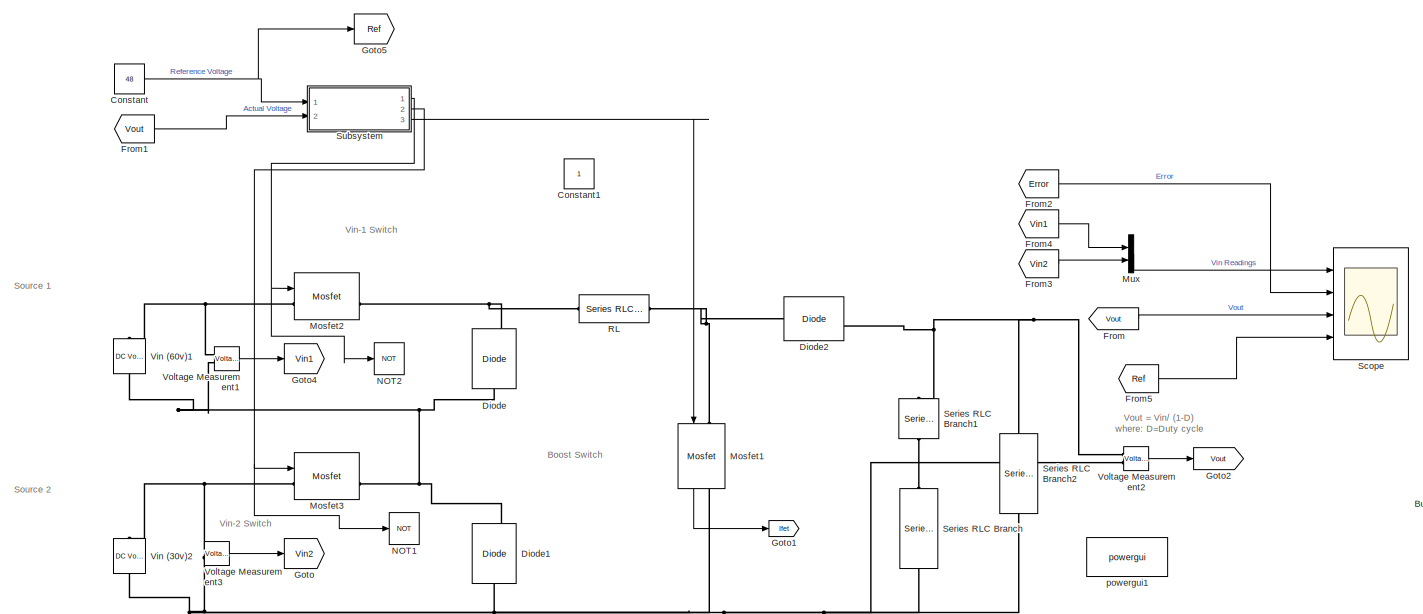
[diagram: root canvas - part 1/2, most of the canvas]
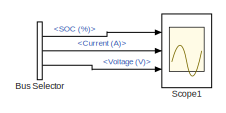
[diagram: root canvas - part 2/2, bottom right region]
MODEL slx_49f4c636add5
KIND model
CONFIG AbsTol = auto
CONFIG EnableMultiTasking = on
CONFIG FixedStep = auto
CONFIG MaxStep = 1e-4
CONFIG MinStep = auto
CONFIG RelTol = 1e-4
CONFIG SampleTimeConstraint = Unconstrained
CONFIG SolverName = VariableStepAuto
CONFIG StartTime = 0.0
CONFIG StopTime = 0.01
BLOCK [BusSelector] Bus Selector
  Commented = on
  OutputSignals = SOC (%),Current (A),Voltage (V)
  Ports = [1, 3]
BLOCK [Constant] Constant
  Value = 48
BLOCK [Constant] Constant1
BLOCK [Reference] Diode  REF=spsDiodeLib/Diode
  NameLocation = right
  Ports = [0, 1, 0, 0, 0, 1, 1]
  SourceBlock = spsDiodeLib/Diode
  SourceProductBaseCode = PS
  SourceType = Diode
BLOCK [Reference] Diode1  REF=spsDiodeLib/Diode
  NameLocation = right
  Ports = [0, 1, 0, 0, 0, 1, 1]
  SourceBlock = spsDiodeLib/Diode
  SourceProductBaseCode = PS
  SourceType = Diode
BLOCK [Reference] Diode2  REF=spsDiodeLib/Diode
  Ports = [0, 1, 0, 0, 0, 1, 1]
  SourceBlock = spsDiodeLib/Diode
  SourceProductBaseCode = PS
  SourceType = Diode
BLOCK [From] From
  GotoTag = Vout
BLOCK [From] From1
  GotoTag = Vout
BLOCK [From] From2
  GotoTag = Error
  TagVisibility = global
BLOCK [From] From3
  GotoTag = Vin2
BLOCK [From] From4
  GotoTag = Vin1
BLOCK [From] From5
  GotoTag = Ref
BLOCK [Goto] Goto
  GotoTag = Vin2
BLOCK [Goto] Goto1
  GotoTag = Ifet
BLOCK [Goto] Goto2
  GotoTag = Vout
BLOCK [Goto] Goto4
  GotoTag = Vin1
BLOCK [Goto] Goto5
  GotoTag = Ref
BLOCK [Reference] Mosfet1  REF=spsMosfetLib/Mosfet
  NameLocation = left
  Ports = [1, 1, 0, 0, 0, 1, 1]
  SourceBlock = spsMosfetLib/Mosfet
  SourceProductBaseCode = PS
  SourceType = Mosfet
BLOCK [Reference] Mosfet2  REF=spsMosfetLib/Mosfet
  Ports = [1, 1, 0, 0, 0, 1, 1]
  SourceBlock = spsMosfetLib/Mosfet
  SourceProductBaseCode = PS
  SourceType = Mosfet
BLOCK [Reference] Mosfet3  REF=spsMosfetLib/Mosfet
  Ports = [1, 1, 0, 0, 0, 1, 1]
  SourceBlock = spsMosfetLib/Mosfet
  SourceProductBaseCode = PS
  SourceType = Mosfet
BLOCK [Mux] Mux
  DisplayOption = bar
  Inputs = 2
  Ports = [2, 1]
BLOCK [Logic] NOT1
  AllPortsSameDT = off
  IconShape = distinctive
  Operator = NOT
  OutDataTypeStr = boolean
  Ports = [1, 1]
BLOCK [Logic] NOT2
  AllPortsSameDT = off
  IconShape = distinctive
  Operator = NOT
  OutDataTypeStr = boolean
  Ports = [1, 1]
BLOCK [Reference] RL  REF=spsSeriesRLCBranchLib/Series RLC Branch
  Ports = [0, 0, 0, 0, 0, 1, 1]
  SourceBlock = spsSeriesRLCBranchLib/Series RLC Branch
  SourceProductBaseCode = PS
  SourceType = Series RLC Branch
BLOCK [Scope] Scope
  Floating = off
  NumInputPorts = 4
  Ports = [4]
  ScopeSpecificationString = Simulink.scopes.TimeScopeBlockCfg('CurrentConfiguration', extmgr.ConfigurationSet(extmgr.Configuration('Core','General UI',true),extmgr.Configuration('Core','Source UI',true),extmgr.Configuration('Sources','WiredSimulink',true,'DataLoggingVariableName','ScopeData1'),extmgr.Configuration('Visuals','Time Domain',true,'SerializedDisplays',{struct('MinYLimReal','-67.86047','MaxYLimReal','115.86047','Y...<+1910ch>
BLOCK [Scope] Scope1
  Commented = on
  Floating = off
  NumInputPorts = 3
  Ports = [3]
  ScopeSpecificationString = Simulink.scopes.TimeScopeBlockCfg('CurrentConfiguration', extmgr.ConfigurationSet(extmgr.Configuration('Core','General UI',true),extmgr.Configuration('Core','Source UI',true),extmgr.Configuration('Sources','WiredSimulink',true,'DataLoggingVariableName','ScopeData1'),extmgr.Configuration('Visuals','Time Domain',true,'SerializedDisplays',{struct('MinYLimReal','54.999976','MaxYLimReal','55.000003','Y...<+2786ch>
BLOCK [Reference] Series RLC Branch  REF=spsSeriesRLCBranchLib/Series RLC Branch
  NameLocation = left
  Ports = [0, 0, 0, 0, 0, 1, 1]
  SourceBlock = spsSeriesRLCBranchLib/Series RLC Branch
  SourceProductBaseCode = PS
  SourceType = Series RLC Branch
BLOCK [Reference] Series RLC Branch1  REF=spsSeriesRLCBranchLib/Series RLC Branch
  NameLocation = left
  Ports = [0, 0, 0, 0, 0, 1, 1]
  SourceBlock = spsSeriesRLCBranchLib/Series RLC Branch
  SourceProductBaseCode = PS
  SourceType = Series RLC Branch
BLOCK [Reference] Series RLC Branch2  REF=spsSeriesRLCBranchLib/Series RLC Branch
  NameLocation = left
  Ports = [0, 0, 0, 0, 0, 1, 1]
  SourceBlock = spsSeriesRLCBranchLib/Series RLC Branch
  SourceProductBaseCode = PS
  SourceType = Series RLC Branch
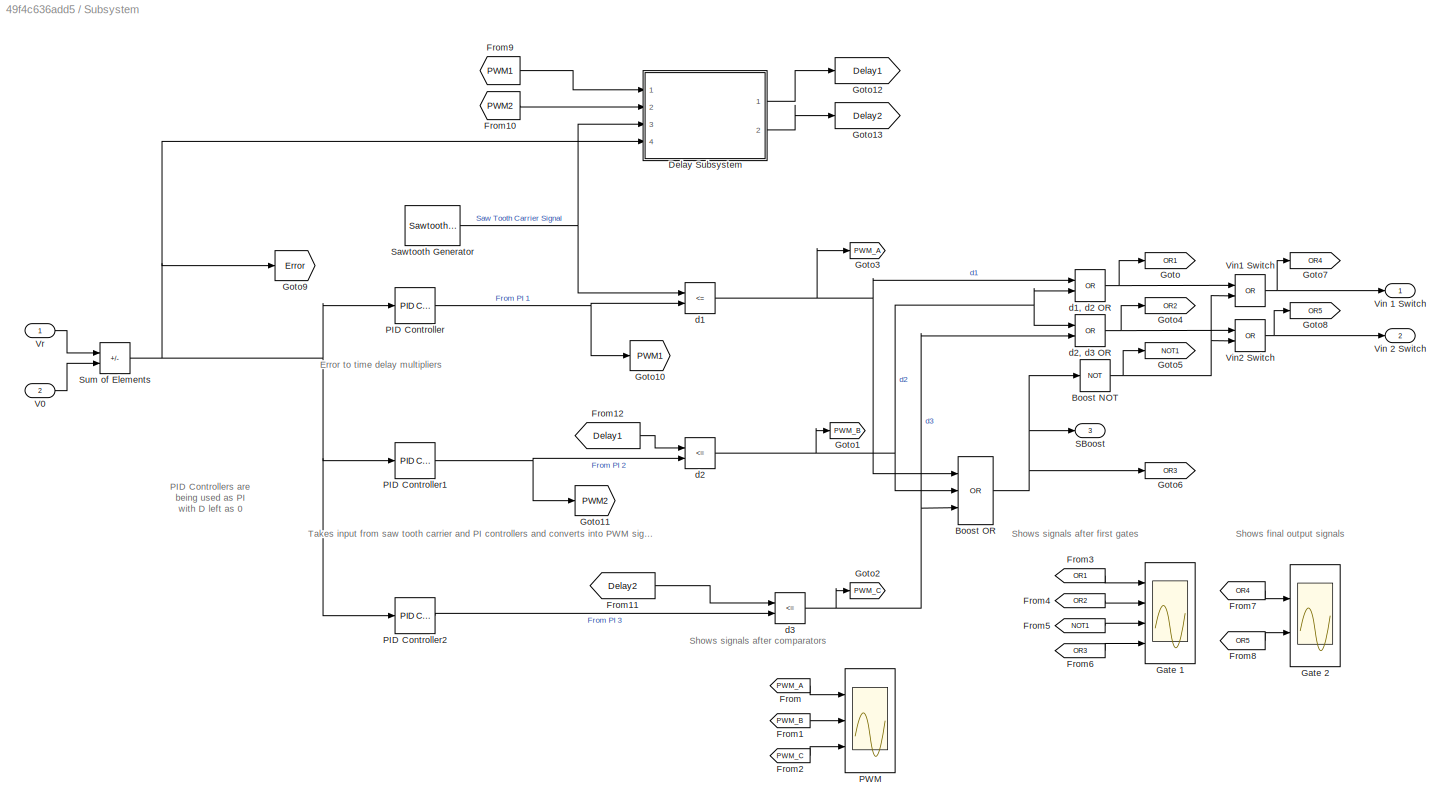
BLOCK [SubSystem] Subsystem
  Ports = [2, 3]
  RequestExecContextInheritance = off
BLOCK [Logic] Subsystem/Boost NOT
  AllPortsSameDT = off
  IconShape = distinctive
  Operator = NOT
  OutDataTypeStr = boolean
  Ports = [1, 1]
BLOCK [Logic] Subsystem/Boost OR
  AllPortsSameDT = off
  IconShape = distinctive
  Inputs = 3
  Operator = OR
  OutDataTypeStr = boolean
  Ports = [3, 1]
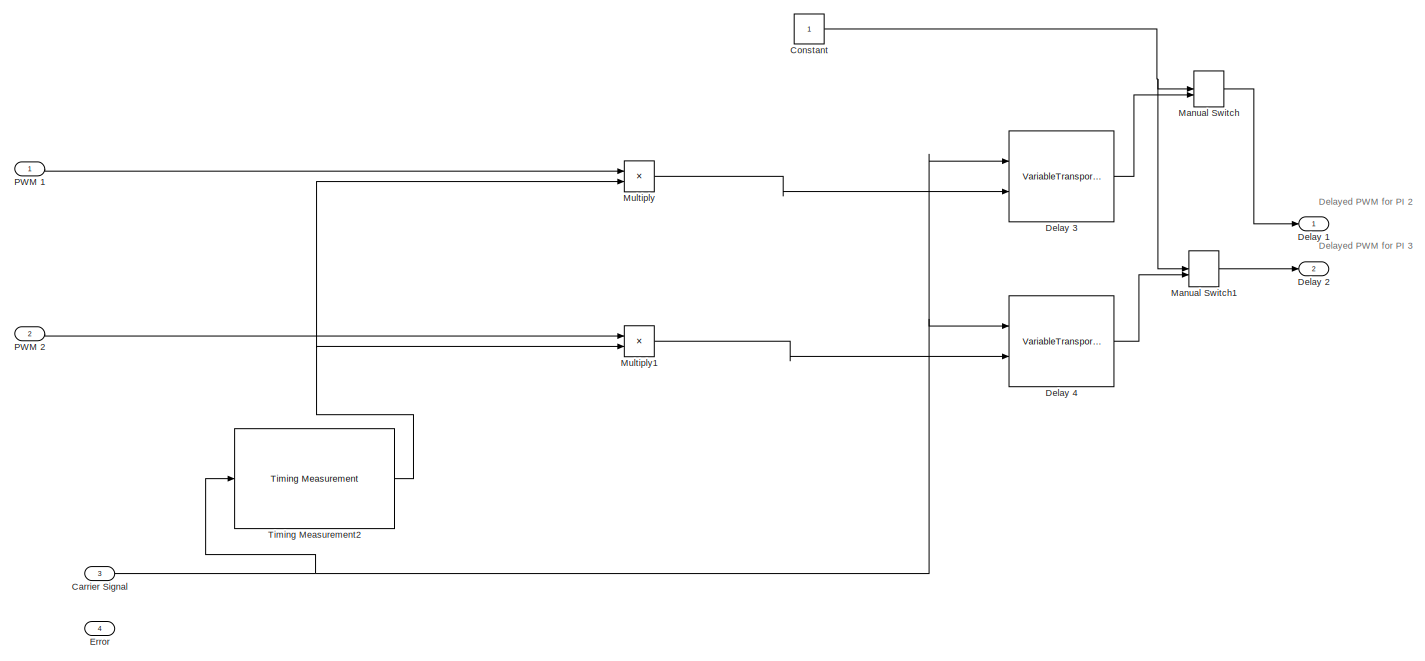
[diagram: Subsystem/Delay Subsystem - part 1/2, most of the canvas]
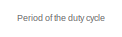
[diagram: Subsystem/Delay Subsystem - part 2/2, top left region]
BLOCK [SubSystem] Subsystem/Delay Subsystem
  Ports = [4, 2]
  RequestExecContextInheritance = off
BLOCK [Inport] Subsystem/Delay Subsystem/Carrier Signal
  Port = 3
BLOCK [Constant] Subsystem/Delay Subsystem/Constant
BLOCK [Outport] Subsystem/Delay Subsystem/Delay 1
BLOCK [Outport] Subsystem/Delay Subsystem/Delay 2
  Port = 2
BLOCK [VariableTransportDelay] Subsystem/Delay Subsystem/Delay 3
  MaximumDelay = 10
  Ports = [2, 1]
BLOCK [VariableTransportDelay] Subsystem/Delay Subsystem/Delay 4
  MaximumDelay = 10
  Ports = [2, 1]
BLOCK [Inport] Subsystem/Delay Subsystem/Error
  Port = 4
BLOCK [ManualSwitch] Subsystem/Delay Subsystem/Manual Switch
  CurrentSetting = 0
BLOCK [ManualSwitch] Subsystem/Delay Subsystem/Manual Switch1
  CurrentSetting = 0
BLOCK [Product] Subsystem/Delay Subsystem/Multiply
  Inputs = **
  Ports = [2, 1]
BLOCK [Product] Subsystem/Delay Subsystem/Multiply1
  Inputs = **
  Ports = [2, 1]
BLOCK [Inport] Subsystem/Delay Subsystem/PWM 1
BLOCK [Inport] Subsystem/Delay Subsystem/PWM 2
  Port = 2
BLOCK [Reference] Subsystem/Delay Subsystem/Timing Measurement2  REF=msbUtilities/Timing Measurement
  Ports = [1, 1]
  SourceBlock = msbUtilities/Timing Measurement
  SourceProductBaseCode = AM
  SourceType = TimingMeasurement
BLOCK [From] Subsystem/From
  GotoTag = PWM_A
BLOCK [From] Subsystem/From1
  GotoTag = PWM_B
BLOCK [From] Subsystem/From10
  GotoTag = PWM2
BLOCK [From] Subsystem/From11
  GotoTag = Delay2
BLOCK [From] Subsystem/From12
  GotoTag = Delay1
BLOCK [From] Subsystem/From2
  GotoTag = PWM_C
BLOCK [From] Subsystem/From3
  GotoTag = OR1
BLOCK [From] Subsystem/From4
  GotoTag = OR2
BLOCK [From] Subsystem/From5
  GotoTag = NOT1
BLOCK [From] Subsystem/From6
  GotoTag = OR3
BLOCK [From] Subsystem/From7
  GotoTag = OR4
BLOCK [From] Subsystem/From8
  GotoTag = OR5
BLOCK [From] Subsystem/From9
  GotoTag = PWM1
BLOCK [Scope] Subsystem/Gate 1
  Floating = off
  NumInputPorts = 4
  Ports = [4]
  ScopeSpecificationString = Simulink.scopes.TimeScopeBlockCfg('CurrentConfiguration', extmgr.ConfigurationSet(extmgr.Configuration('Core','General UI',true),extmgr.Configuration('Core','Source UI',true),extmgr.Configuration('Sources','WiredSimulink',true,'DataLoggingVariableName','ScopeData2'),extmgr.Configuration('Visuals','Time Domain',true,'SerializedDisplays',{struct('MinYLimReal','0.27299','MaxYLimReal','0.44708','YLabe...<+2781ch>
BLOCK [Scope] Subsystem/Gate 2
  Floating = off
  NumInputPorts = 2
  Ports = [2]
  ScopeSpecificationString = Simulink.scopes.TimeScopeBlockCfg('CurrentConfiguration', extmgr.ConfigurationSet(extmgr.Configuration('Core','General UI',true),extmgr.Configuration('Core','Source UI',true),extmgr.Configuration('Sources','WiredSimulink',true,'DataLoggingVariableName','ScopeData3'),extmgr.Configuration('Visuals','Time Domain',true,'SerializedDisplays',{struct('MinYLimReal','0.27299','MaxYLimReal','0.44708','YLabe...<+2773ch>
BLOCK [Goto] Subsystem/Goto
  GotoTag = OR1
BLOCK [Goto] Subsystem/Goto1
  GotoTag = PWM_B
BLOCK [Goto] Subsystem/Goto10
  GotoTag = PWM1
BLOCK [Goto] Subsystem/Goto11
  GotoTag = PWM2
BLOCK [Goto] Subsystem/Goto12
  GotoTag = Delay1
BLOCK [Goto] Subsystem/Goto13
  GotoTag = Delay2
BLOCK [Goto] Subsystem/Goto2
  GotoTag = PWM_C
BLOCK [Goto] Subsystem/Goto3
  GotoTag = PWM_A
BLOCK [Goto] Subsystem/Goto4
  GotoTag = OR2
BLOCK [Goto] Subsystem/Goto5
  GotoTag = NOT1
BLOCK [Goto] Subsystem/Goto6
  GotoTag = OR3
BLOCK [Goto] Subsystem/Goto7
  GotoTag = OR4
BLOCK [Goto] Subsystem/Goto8
  GotoTag = OR5
BLOCK [Goto] Subsystem/Goto9
  GotoTag = Error
  TagVisibility = global
BLOCK [Reference] Subsystem/PID Controller  REF=slpidlib/PID Controller
  Ports = [1, 1]
  SourceBlock = slpidlib/PID Controller
  SourceProductBaseCode = SL
  SourceType = PID 1dof
BLOCK [Reference] Subsystem/PID Controller1  REF=slpidlib/PID Controller
  Ports = [1, 1]
  SourceBlock = slpidlib/PID Controller
  SourceProductBaseCode = SL
  SourceType = PID 1dof
BLOCK [Reference] Subsystem/PID Controller2  REF=slpidlib/PID Controller
  Ports = [1, 1]
  SourceBlock = slpidlib/PID Controller
  SourceProductBaseCode = SL
  SourceType = PID 1dof
BLOCK [Scope] Subsystem/PWM 
  Floating = off
  NumInputPorts = 3
  Ports = [3]
  ScopeSpecificationString = Simulink.scopes.TimeScopeBlockCfg('CurrentConfiguration', extmgr.ConfigurationSet(extmgr.Configuration('Core','General UI',true),extmgr.Configuration('Core','Source UI',true),extmgr.Configuration('Sources','WiredSimulink',true,'DataLoggingVariableName','ScopeData1'),extmgr.Configuration('Visuals','Time Domain',true,'SerializedDisplays',{struct('MinYLimReal','0.27299','MaxYLimReal','0.44708','YLabe...<+2830ch>
BLOCK [Outport] Subsystem/SBoost
  Port = 3
BLOCK [Reference] Subsystem/Sawtooth Generator  REF=spsSawtoothGeneratorLib/Sawtooth
Generator
  Ports = [0, 1]
  SourceBlock = spsSawtoothGeneratorLib/Sawtooth\nGenerator
  SourceProductBaseCode = PS
  SourceType = Sawtooth Generator
BLOCK [Sum] Subsystem/Sum of Elements
  IconShape = rectangular
  Inputs = +-
  Ports = [2, 1]
BLOCK [Inport] Subsystem/V0
  Port = 2
BLOCK [Outport] Subsystem/Vin 1 Switch
BLOCK [Outport] Subsystem/Vin 2 Switch
  Port = 2
BLOCK [Logic] Subsystem/Vin1 Switch
  AllPortsSameDT = off
  IconShape = distinctive
  Operator = OR
  OutDataTypeStr = boolean
  Ports = [2, 1]
BLOCK [Logic] Subsystem/Vin2 Switch
  AllPortsSameDT = off
  IconShape = distinctive
  Operator = OR
  OutDataTypeStr = boolean
  Ports = [2, 1]
BLOCK [Inport] Subsystem/Vr
BLOCK [RelationalOperator] Subsystem/d1
  InputSameDT = off
  Operator = <=
  OutDataTypeStr = boolean
  Ports = [2, 1]
  RndMeth = Simplest
BLOCK [Logic] Subsystem/d1, d2 OR
  AllPortsSameDT = off
  IconShape = distinctive
  Operator = OR
  OutDataTypeStr = boolean
  Ports = [2, 1]
BLOCK [RelationalOperator] Subsystem/d2
  InputSameDT = off
  Operator = <=
  OutDataTypeStr = boolean
  Ports = [2, 1]
  RndMeth = Simplest
BLOCK [Logic] Subsystem/d2, d3 OR
  AllPortsSameDT = off
  IconShape = distinctive
  Operator = OR
  OutDataTypeStr = boolean
  Ports = [2, 1]
BLOCK [RelationalOperator] Subsystem/d3
  InputSameDT = off
  Operator = <=
  OutDataTypeStr = boolean
  Ports = [2, 1]
  RndMeth = Simplest
BLOCK [Reference] Vin (30v)2  REF=spsDCVoltageSourceLib/DC Voltage Source
  NameLocation = left
  Ports = [0, 0, 0, 0, 0, 1, 1]
  SourceBlock = spsDCVoltageSourceLib/DC Voltage Source
  SourceProductBaseCode = PS
  SourceType = DC Voltage Source
BLOCK [Reference] Vin (60v)1  REF=spsDCVoltageSourceLib/DC Voltage Source
  NameLocation = left
  Ports = [0, 0, 0, 0, 0, 1, 1]
  SourceBlock = spsDCVoltageSourceLib/DC Voltage Source
  SourceProductBaseCode = PS
  SourceType = DC Voltage Source
BLOCK [Reference] Voltage Measurement1  REF=spsVoltageMeasurementLib/Voltage Measurement
  Ports = [0, 1, 0, 0, 0, 2]
  SourceBlock = spsVoltageMeasurementLib/Voltage Measurement
  SourceProductBaseCode = PS
  SourceType = Voltage Measurement
  UserDataPersistent = on
BLOCK [Reference] Voltage Measurement2  REF=spsVoltageMeasurementLib/Voltage Measurement
  Ports = [0, 1, 0, 0, 0, 2]
  SourceBlock = spsVoltageMeasurementLib/Voltage Measurement
  SourceProductBaseCode = PS
  SourceType = Voltage Measurement
  UserDataPersistent = on
BLOCK [Reference] Voltage Measurement3  REF=spsVoltageMeasurementLib/Voltage Measurement
  Ports = [0, 1, 0, 0, 0, 2]
  SourceBlock = spsVoltageMeasurementLib/Voltage Measurement
  SourceProductBaseCode = PS
  SourceType = Voltage Measurement
  UserDataPersistent = on
BLOCK [Reference] powergui1  REF=spspowerguiLib/powergui
  Ports = []
  Priority = 1
  SourceBlock = spspowerguiLib/powergui
  SourceProductBaseCode = PS
  SourceType = PSB option menu block
ANNOTATION (root): Vin-2 Switch
ANNOTATION (root): Vin-1 Switch
ANNOTATION (root): Vout = Vin/ (1-D) where: D=Duty cycle
ANNOTATION (root): Boost Switch
ANNOTATION (root): Source 1
ANNOTATION (root): Source 2
ANNOTATION Subsystem: Error to time delay multipliers
ANNOTATION Subsystem: PID Controllers are being used as PI with D left as 0
ANNOTATION Subsystem: Shows final output signals
ANNOTATION Subsystem: Shows signals after comparators
ANNOTATION Subsystem: Shows signals after first gates
ANNOTATION Subsystem: Takes input from saw tooth carrier and PI controllers and converts into PWM signals
ANNOTATION Subsystem/Delay Subsystem: Delayed PWM for PI 2
ANNOTATION Subsystem/Delay Subsystem: Delayed PWM for PI 3
ANNOTATION Subsystem/Delay Subsystem: Period of the duty cycle
LINE Bus Selector:1 -> Scope1:1
LINE Bus Selector:2 -> Scope1:2
LINE Bus Selector:3 -> Scope1:3
NET Constant:1 -> Goto5:1, Subsystem:1
LINE From1:1 -> Subsystem:2
LINE From2:1 -> Scope:2
LINE From3:1 -> Mux:2
LINE From4:1 -> Mux:1
LINE From5:1 -> Scope:4
LINE From:1 -> Scope:3
LINE Mosfet1:1 -> Goto1:1
LINE Mux:1 -> Scope:1
NET Subsystem/Boost NOT:1 -> Subsystem/Goto5:1, Subsystem/Vin1 Switch:2, Subsystem/Vin2 Switch:2
NET Subsystem/Boost OR:1 -> Subsystem/Boost NOT:1, Subsystem/Goto6:1, Subsystem/SBoost:1
NET Subsystem/Delay Subsystem/Carrier Signal:1 -> Subsystem/Delay Subsystem/Delay 3:1, Subsystem/Delay Subsystem/Delay 4:1, Subsystem/Delay Subsystem/Timing Measurement2:1
NET Subsystem/Delay Subsystem/Constant:1 -> Subsystem/Delay Subsystem/Manual Switch1:1, Subsystem/Delay Subsystem/Manual Switch:1
LINE Subsystem/Delay Subsystem/Delay 3:1 -> Subsystem/Delay Subsystem/Manual Switch:2
LINE Subsystem/Delay Subsystem/Delay 4:1 -> Subsystem/Delay Subsystem/Manual Switch1:2
LINE Subsystem/Delay Subsystem/Manual Switch1:1 -> Subsystem/Delay Subsystem/Delay 2:1
LINE Subsystem/Delay Subsystem/Manual Switch:1 -> Subsystem/Delay Subsystem/Delay 1:1
LINE Subsystem/Delay Subsystem/Multiply1:1 -> Subsystem/Delay Subsystem/Delay 4:2
LINE Subsystem/Delay Subsystem/Multiply:1 -> Subsystem/Delay Subsystem/Delay 3:2
LINE Subsystem/Delay Subsystem/PWM 1:1 -> Subsystem/Delay Subsystem/Multiply:1
LINE Subsystem/Delay Subsystem/PWM 2:1 -> Subsystem/Delay Subsystem/Multiply1:1
NET Subsystem/Delay Subsystem/Timing Measurement2:1 -> Subsystem/Delay Subsystem/Multiply1:2, Subsystem/Delay Subsystem/Multiply:2
LINE Subsystem/Delay Subsystem:1 -> Subsystem/Goto12:1
LINE Subsystem/Delay Subsystem:2 -> Subsystem/Goto13:1
LINE Subsystem/From10:1 -> Subsystem/Delay Subsystem:2
LINE Subsystem/From11:1 -> Subsystem/d3:1
LINE Subsystem/From12:1 -> Subsystem/d2:1
LINE Subsystem/From1:1 -> Subsystem/PWM :2
LINE Subsystem/From2:1 -> Subsystem/PWM :3
LINE Subsystem/From3:1 -> Subsystem/Gate 1:1
LINE Subsystem/From4:1 -> Subsystem/Gate 1:2
LINE Subsystem/From5:1 -> Subsystem/Gate 1:3
LINE Subsystem/From6:1 -> Subsystem/Gate 1:4
LINE Subsystem/From7:1 -> Subsystem/Gate 2:1
LINE Subsystem/From8:1 -> Subsystem/Gate 2:2
LINE Subsystem/From9:1 -> Subsystem/Delay Subsystem:1
LINE Subsystem/From:1 -> Subsystem/PWM :1
NET Subsystem/PID Controller1:1 -> Subsystem/Goto11:1, Subsystem/d2:2
LINE Subsystem/PID Controller2:1 -> Subsystem/d3:2
NET Subsystem/PID Controller:1 -> Subsystem/Goto10:1, Subsystem/d1:2
NET Subsystem/Sawtooth Generator:1 -> Subsystem/Delay Subsystem:3, Subsystem/d1:1
NET Subsystem/Sum of Elements:1 -> Subsystem/Delay Subsystem:4, Subsystem/Goto9:1, Subsystem/PID Controller1:1, Subsystem/PID Controller2:1, Subsystem/PID Controller:1
LINE Subsystem/V0:1 -> Subsystem/Sum of Elements:2
NET Subsystem/Vin1 Switch:1 -> Subsystem/Goto7:1, Subsystem/Vin 1 Switch:1
NET Subsystem/Vin2 Switch:1 -> Subsystem/Goto8:1, Subsystem/Vin 2 Switch:1
LINE Subsystem/Vr:1 -> Subsystem/Sum of Elements:1
NET Subsystem/d1, d2 OR:1 -> Subsystem/Goto:1, Subsystem/Vin1 Switch:1
NET Subsystem/d1:1 -> Subsystem/Boost OR:1, Subsystem/Goto3:1, Subsystem/d1, d2 OR:1
NET Subsystem/d2, d3 OR:1 -> Subsystem/Goto4:1, Subsystem/Vin2 Switch:1
NET Subsystem/d2:1 -> Subsystem/Boost OR:2, Subsystem/Goto1:1, Subsystem/d1, d2 OR:2, Subsystem/d2, d3 OR:1
NET Subsystem/d3:1 -> Subsystem/Boost OR:3, Subsystem/Goto2:1, Subsystem/d2, d3 OR:2
NET Subsystem:1 -> Mosfet2:1, NOT2:1
NET Subsystem:2 -> Mosfet3:1, NOT1:1
LINE Subsystem:3 -> Mosfet1:1
LINE Voltage Measurement1:1 -> Goto4:1
LINE Voltage Measurement2:1 -> Goto2:1
LINE Voltage Measurement3:1 -> Goto:1
PNET net1: Diode1:LConn1 -- Mosfet1:RConn1 -- Series RLC Branch2:RConn1 -- Series RLC Branch:RConn1 -- Vin (30v)2:LConn1 -- Voltage Measurement2:LConn2 -- Voltage Measurement3:LConn2
PNET net2: Diode1:RConn1 -- Diode:LConn1 -- Mosfet3:RConn1 -- Vin (60v)1:LConn1 -- Voltage Measurement1:LConn2
PNET net3: Diode2:LConn1 -- Mosfet1:LConn1 -- RL:RConn1
PNET net4: Diode2:RConn1 -- Series RLC Branch1:LConn1 -- Series RLC Branch2:LConn1 -- Voltage Measurement2:LConn1
PNET net5: Diode:RConn1 -- Mosfet2:RConn1 -- RL:LConn1
PNET net6: Mosfet2:LConn1 -- Vin (60v)1:RConn1 -- Voltage Measurement1:LConn1
PNET net7: Mosfet3:LConn1 -- Vin (30v)2:RConn1 -- Voltage Measurement3:LConn1
PLINE Series RLC Branch1:RConn1 -- Series RLC Branch:LConn1
note: NET lines group one-source signal fan-out (src -> all destinations, sorted); 1:1 wires keep LINE; PNET lines group multi-terminal physical nets as a canonical sorted terminal list (undirected conserving connections); 2-terminal nets keep the pairwise PLINE form
